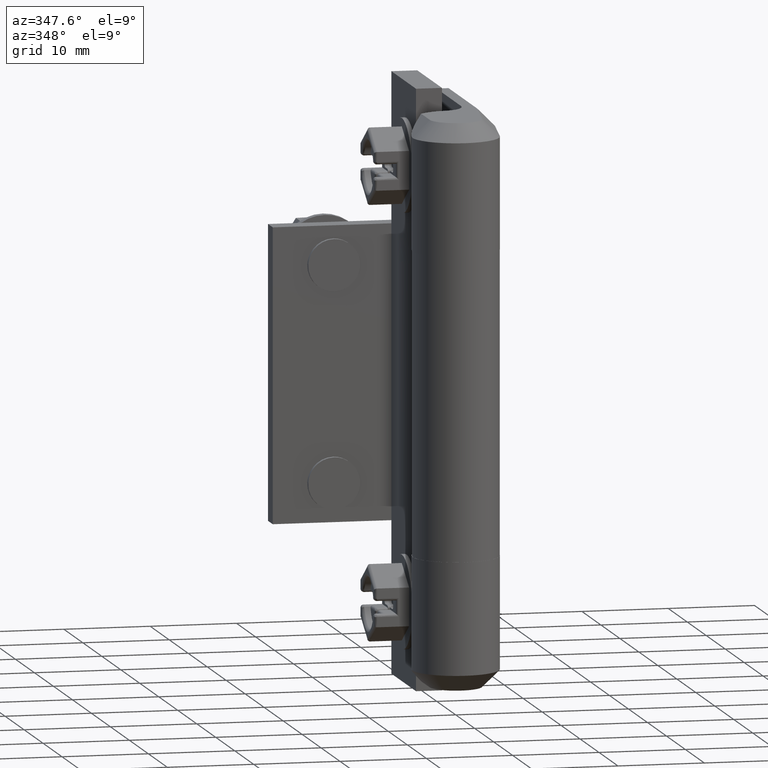
[diagram: clean part render]
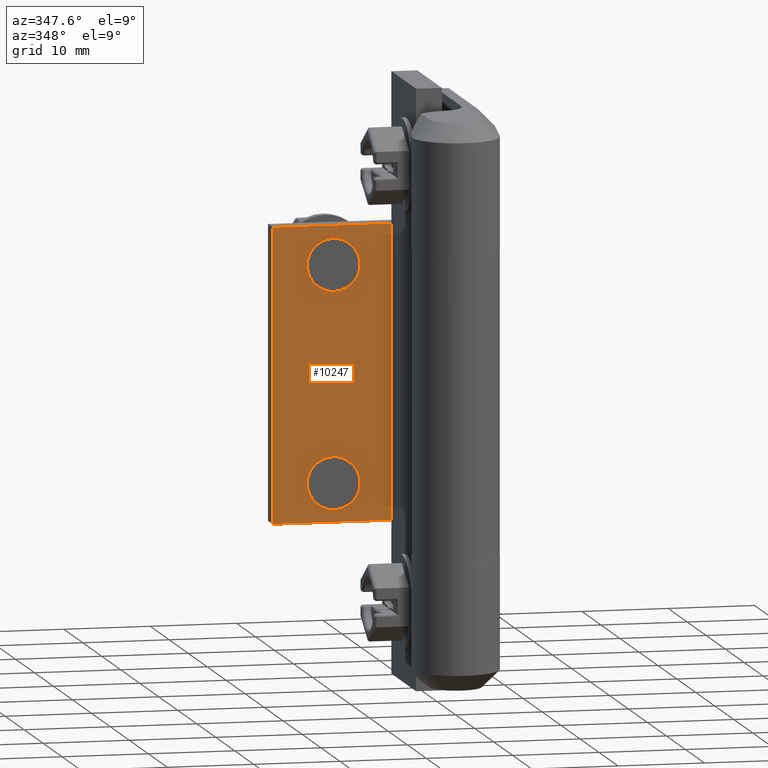
[diagram: same view with one face highlighted and labeled with its STEP entity id]
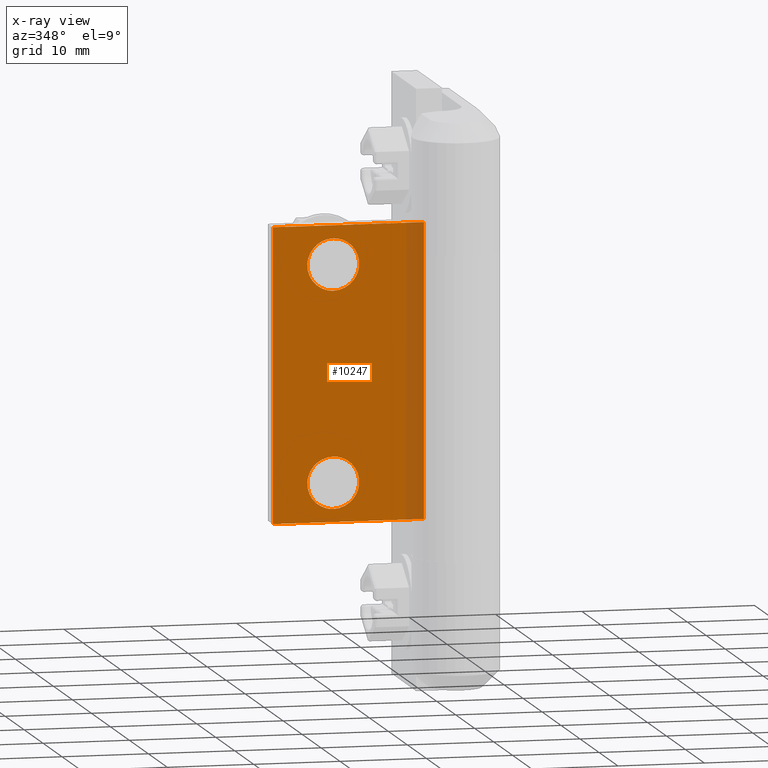
[diagram: x-ray of the same camera — body ghosted, the highlighted face saturated]
A machine part, auxiliary view. The second image highlights one B-rep face of the part: STEP entity #10247.
The next image is the same camera in x-ray: the body ghosted, the highlighted face saturated — about 13% of this face is hidden behind the body in this view.
In plain terms, the highlighted face is a freeform B-spline surface patch.
Its self-contained STEP definition (entity closure, byte-faithful):
#9579=CARTESIAN_POINT('',(-6.045971684264521,23.500001116190109,44.645897509001671));
#9580=VERTEX_POINT('',#9579);
#9586=CARTESIAN_POINT('',(-9.025000404822590,23.500001116190099,48.000000372528959));
#9587=VERTEX_POINT('',#9586);
#9588=CARTESIAN_POINT('',(-6.045971684264521,23.500001116190102,44.645897509001678));
#9589=CARTESIAN_POINT('',(-6.025000262330231,23.500001116190102,44.822327862393614));
#9590=CARTESIAN_POINT('',(-6.025000262330231,23.500001116190099,45.000000230036598));
#9591=CARTESIAN_POINT('',(-6.025000262330230,23.500001116190109,48.000000372528959));
#9592=CARTESIAN_POINT('',(-9.025000404822590,23.500001116190099,48.000000372528959));
#9600=(BOUNDED_CURVE()B_SPLINE_CURVE(2,(#9588,#9589,#9590,#9591,#9592),.UNSPECIFIED.,.F.,.U.)B_SPLINE_CURVE_WITH_KNOTS((3,2,3),(0.229562473487770,0.250000000000000,0.500000000000000),.UNSPECIFIED.)CURVE()GEOMETRIC_REPRESENTATION_ITEM()RATIONAL_B_SPLINE_CURVE((0.956026754133252,0.976055948300991,1.0,0.707106781186547,1.0))REPRESENTATION_ITEM(''));
#9601=EDGE_CURVE('',#9580,#9587,#9600,.T.);
#9603=CARTESIAN_POINT('',(-12.019405282588551,23.500001116190099,45.183140293743350));
#9604=VERTEX_POINT('',#9603);
#9605=CARTESIAN_POINT('',(-9.025000404822590,23.500001116190099,48.000000372528959));
#9606=CARTESIAN_POINT('',(-11.847123992874939,23.500001116190106,48.000000372528959));
#9607=CARTESIAN_POINT('',(-12.019405282588558,23.500001116190102,45.183140293743350));
#9615=(BOUNDED_CURVE()B_SPLINE_CURVE(2,(#9605,#9606,#9607),.UNSPECIFIED.,.F.,.U.)B_SPLINE_CURVE_WITH_KNOTS((3,3),(0.500000000000000,0.739333282833585),.UNSPECIFIED.)CURVE()GEOMETRIC_REPRESENTATION_ITEM()RATIONAL_B_SPLINE_CURVE((1.0,0.719603617686723,0.976072728763027))REPRESENTATION_ITEM(''));
#9616=EDGE_CURVE('',#9587,#9604,#9615,.T.);
#9690=CARTESIAN_POINT('',(-9.025000404822590,23.500001116190099,42.000000087544237));
#9691=VERTEX_POINT('',#9690);
#9692=CARTESIAN_POINT('',(-12.019405282588552,23.500001116190099,45.183140293743350));
#9693=CARTESIAN_POINT('',(-12.025000547314953,23.500001116190106,45.091655734688018));
#9694=CARTESIAN_POINT('',(-12.025000547314949,23.500001116190099,45.000000230036598));
#9695=CARTESIAN_POINT('',(-12.025000547314951,23.500001116190109,42.000000087544244));
#9696=CARTESIAN_POINT('',(-9.025000404822590,23.500001116190099,42.000000087544237));
#9704=(BOUNDED_CURVE()B_SPLINE_CURVE(2,(#9692,#9693,#9694,#9695,#9696),.UNSPECIFIED.,.F.,.U.)B_SPLINE_CURVE_WITH_KNOTS((3,2,3),(0.739333282833585,0.750000000000000,1.0),.UNSPECIFIED.)CURVE()GEOMETRIC_REPRESENTATION_ITEM()RATIONAL_B_SPLINE_CURVE((0.976072728763026,0.987503163499824,1.0,0.707106781186547,1.0))REPRESENTATION_ITEM(''));
#9705=EDGE_CURVE('',#9604,#9691,#9704,.T.);
#9707=CARTESIAN_POINT('',(-9.025000404822590,23.500001116190099,42.000000087544237));
#9708=CARTESIAN_POINT('',(-6.360476700852959,23.500001116190109,42.000000087544244));
#9709=CARTESIAN_POINT('',(-6.045971684264521,23.500001116190109,44.645897509001678));
#9717=(BOUNDED_CURVE()B_SPLINE_CURVE(2,(#9707,#9708,#9709),.UNSPECIFIED.,.F.,.U.)B_SPLINE_CURVE_WITH_KNOTS((3,3),(0.0,0.229562473487771),.UNSPECIFIED.)CURVE()GEOMETRIC_REPRESENTATION_ITEM()RATIONAL_B_SPLINE_CURVE((1.0,0.731050832885556,0.956026754133252))REPRESENTATION_ITEM(''));
#9718=EDGE_CURVE('',#9691,#9580,#9717,.T.);
#9769=CARTESIAN_POINT('',(-6.045971684264520,23.500001116190099,19.645898228914081));
#9770=VERTEX_POINT('',#9769);
#9776=CARTESIAN_POINT('',(-9.025000404822590,23.500001116190099,23.000001092441359));
#9777=VERTEX_POINT('',#9776);
#9778=CARTESIAN_POINT('',(-6.045971684264520,23.500001116190095,19.645898228914078));
#9779=CARTESIAN_POINT('',(-6.025000262330231,23.500001116190099,19.822328582306021));
#9780=CARTESIAN_POINT('',(-6.025000262330231,23.500001116190099,20.000000949949001));
#9781=CARTESIAN_POINT('',(-6.025000262330230,23.500001116190109,23.000001092441366));
#9782=CARTESIAN_POINT('',(-9.025000404822590,23.500001116190099,23.000001092441359));
#9790=(BOUNDED_CURVE()B_SPLINE_CURVE(2,(#9778,#9779,#9780,#9781,#9782),.UNSPECIFIED.,.F.,.U.)B_SPLINE_CURVE_WITH_KNOTS((3,2,3),(0.229562473487771,0.250000000000000,0.500000000000000),.UNSPECIFIED.)CURVE()GEOMETRIC_REPRESENTATION_ITEM()RATIONAL_B_SPLINE_CURVE((0.956026754133252,0.976055948300991,1.0,0.707106781186547,1.0))REPRESENTATION_ITEM(''));
#9791=EDGE_CURVE('',#9770,#9777,#9790,.T.);
#9793=CARTESIAN_POINT('',(-12.019405282588551,23.500001116190099,20.183141013655739));
#9794=VERTEX_POINT('',#9793);
#9795=CARTESIAN_POINT('',(-9.025000404822590,23.500001116190099,23.000001092441359));
#9796=CARTESIAN_POINT('',(-11.847123992874945,23.500001116190102,23.000001092441362));
#9797=CARTESIAN_POINT('',(-12.019405282588551,23.500001116190102,20.183141013655739));
#9805=(BOUNDED_CURVE()B_SPLINE_CURVE(2,(#9795,#9796,#9797),.UNSPECIFIED.,.F.,.U.)B_SPLINE_CURVE_WITH_KNOTS((3,3),(0.500000000000000,0.739333282833585),.UNSPECIFIED.)CURVE()GEOMETRIC_REPRESENTATION_ITEM()RATIONAL_B_SPLINE_CURVE((1.0,0.719603617686723,0.976072728763027))REPRESENTATION_ITEM(''));
#9806=EDGE_CURVE('',#9777,#9794,#9805,.T.);
#9880=CARTESIAN_POINT('',(-9.025000404822590,23.500001116190099,17.000000807456640));
#9881=VERTEX_POINT('',#9880);
#9882=CARTESIAN_POINT('',(-12.019405282588551,23.500001116190102,20.183141013655739));
#9883=CARTESIAN_POINT('',(-12.025000547314947,23.500001116190102,20.091656454600422));
#9884=CARTESIAN_POINT('',(-12.025000547314949,23.500001116190099,20.000000949949001));
#9885=CARTESIAN_POINT('',(-12.025000547314951,23.500001116190109,17.000000807456637));
#9886=CARTESIAN_POINT('',(-9.025000404822590,23.500001116190099,17.000000807456640));
#9894=(BOUNDED_CURVE()B_SPLINE_CURVE(2,(#9882,#9883,#9884,#9885,#9886),.UNSPECIFIED.,.F.,.U.)B_SPLINE_CURVE_WITH_KNOTS((3,2,3),(0.739333282833585,0.750000000000000,1.0),.UNSPECIFIED.)CURVE()GEOMETRIC_REPRESENTATION_ITEM()RATIONAL_B_SPLINE_CURVE((0.976072728763027,0.987503163499824,1.0,0.707106781186547,1.0))REPRESENTATION_ITEM(''));
#9895=EDGE_CURVE('',#9794,#9881,#9894,.T.);
#9897=CARTESIAN_POINT('',(-9.025000404822590,23.500001116190099,17.000000807456640));
#9898=CARTESIAN_POINT('',(-6.360476700852958,23.500001116190109,17.000000807456633));
#9899=CARTESIAN_POINT('',(-6.045971684264520,23.500001116190095,19.645898228914078));
#9907=(BOUNDED_CURVE()B_SPLINE_CURVE(2,(#9897,#9898,#9899),.UNSPECIFIED.,.F.,.U.)B_SPLINE_CURVE_WITH_KNOTS((3,3),(0.0,0.229562473487771),.UNSPECIFIED.)CURVE()GEOMETRIC_REPRESENTATION_ITEM()RATIONAL_B_SPLINE_CURVE((1.0,0.731050832885556,0.956026754133252))REPRESENTATION_ITEM(''));
#9908=EDGE_CURVE('',#9881,#9770,#9907,.T.);
#9967=CARTESIAN_POINT('',(1.475000093900632,23.500001116190099,15.499999782536150));
#9968=VERTEX_POINT('',#9967);
#9969=CARTESIAN_POINT('',(-16.025000737304801,23.500001116190099,15.499999782536150));
#9970=VERTEX_POINT('',#9969);
#9971=CARTESIAN_POINT('',(1.475000093900632,23.500001116190099,15.499999782536150));
#9972=CARTESIAN_POINT('',(-16.025000737304801,23.500001116190099,15.499999782536150));
#9973=QUASI_UNIFORM_CURVE('',1,(#9971,#9972),.UNSPECIFIED.,.F.,.U.);
#9974=EDGE_CURVE('',#9968,#9970,#9973,.T.);
#10047=CARTESIAN_POINT('',(1.475000093900632,23.500001116190099,49.500001397449402));
#10048=VERTEX_POINT('',#10047);
#10049=CARTESIAN_POINT('',(-16.025000737304801,23.500001116190099,49.500001397449402));
#10050=VERTEX_POINT('',#10049);
#10051=CARTESIAN_POINT('',(1.475000093900632,23.500001116190099,49.500001397449402));
#10052=CARTESIAN_POINT('',(-16.025000737304801,23.500001116190099,49.500001397449402));
#10053=QUASI_UNIFORM_CURVE('',1,(#10051,#10052),.UNSPECIFIED.,.F.,.U.);
#10054=EDGE_CURVE('',#10048,#10050,#10053,.T.);
#10143=CARTESIAN_POINT('',(1.475000093900632,23.500001116190099,49.500001397449402));
#10144=CARTESIAN_POINT('',(1.475000093900632,23.500001116190099,15.499999782536150));
#10145=QUASI_UNIFORM_CURVE('',1,(#10143,#10144),.UNSPECIFIED.,.F.,.U.);
#10146=EDGE_CURVE('',#10048,#9968,#10145,.T.);
#10214=CARTESIAN_POINT('',(-16.025000737304801,23.500001116190099,49.500001397449402));
#10215=CARTESIAN_POINT('',(-16.025000737304801,23.500001116190099,15.499999782536150));
#10216=QUASI_UNIFORM_CURVE('',1,(#10214,#10215),.UNSPECIFIED.,.F.,.U.);
#10217=EDGE_CURVE('',#10050,#9970,#10216,.T.);
#10224=CARTESIAN_POINT('',(-16.899126566292558,23.500001116190099,51.198300135544969));
#10225=CARTESIAN_POINT('',(-16.899126566292551,23.500001116190099,13.801698916554670));
#10226=CARTESIAN_POINT('',(2.349125609963980,23.500001116190109,51.198300135544969));
#10227=CARTESIAN_POINT('',(2.349125609963980,23.500001116190109,13.801698916554670));
#10228=B_SPLINE_SURFACE_WITH_KNOTS('',1,1,((#10224,#10226),(#10225,#10227)),.UNSPECIFIED.,.F.,.F.,.U.,(2,2),(2,2),(0.0,37.396601218990298),(0.0,19.248252176256539),.UNSPECIFIED.);
#10229=ORIENTED_EDGE('',*,*,#9974,.F.);
#10230=ORIENTED_EDGE('',*,*,#10146,.F.);
#10231=ORIENTED_EDGE('',*,*,#10054,.T.);
#10232=ORIENTED_EDGE('',*,*,#10217,.T.);
#10233=EDGE_LOOP('',(#10229,#10230,#10231,#10232));
#10234=FACE_OUTER_BOUND('',#10233,.T.);
#10235=ORIENTED_EDGE('',*,*,#9806,.F.);
#10236=ORIENTED_EDGE('',*,*,#9791,.F.);
#10237=ORIENTED_EDGE('',*,*,#9908,.F.);
#10238=ORIENTED_EDGE('',*,*,#9895,.F.);
#10239=EDGE_LOOP('',(#10235,#10236,#10237,#10238));
#10240=FACE_BOUND('',#10239,.T.);
#10241=ORIENTED_EDGE('',*,*,#9616,.F.);
#10242=ORIENTED_EDGE('',*,*,#9601,.F.);
#10243=ORIENTED_EDGE('',*,*,#9718,.F.);
#10244=ORIENTED_EDGE('',*,*,#9705,.F.);
#10245=EDGE_LOOP('',(#10241,#10242,#10243,#10244));
#10246=FACE_BOUND('',#10245,.T.);
#10247=ADVANCED_FACE('',(#10234,#10240,#10246),#10228,.T.);